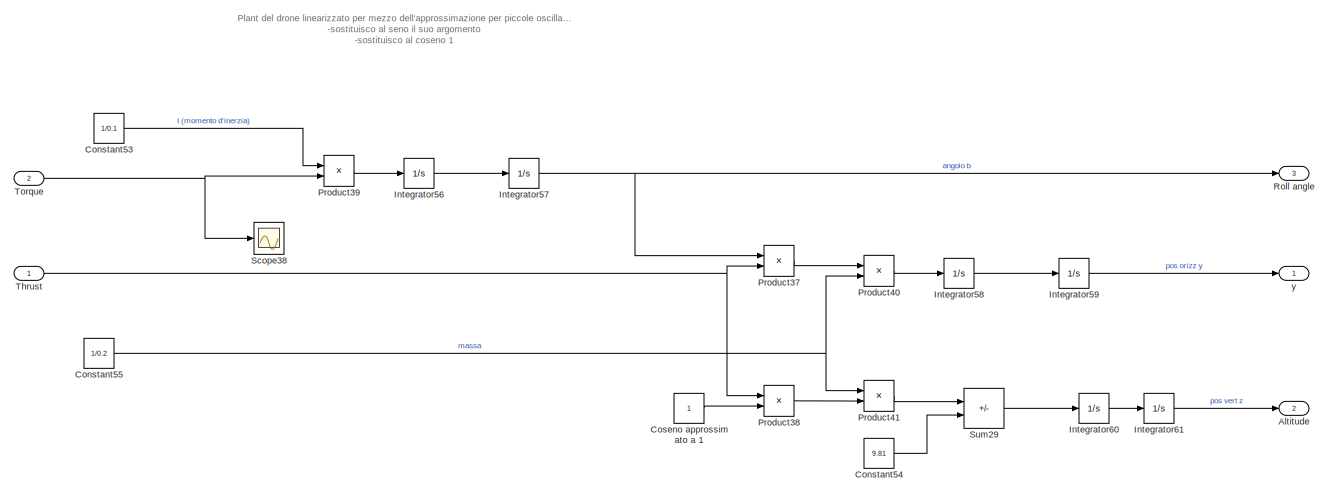
[diagram: root canvas - part 1/2, full width, top band]
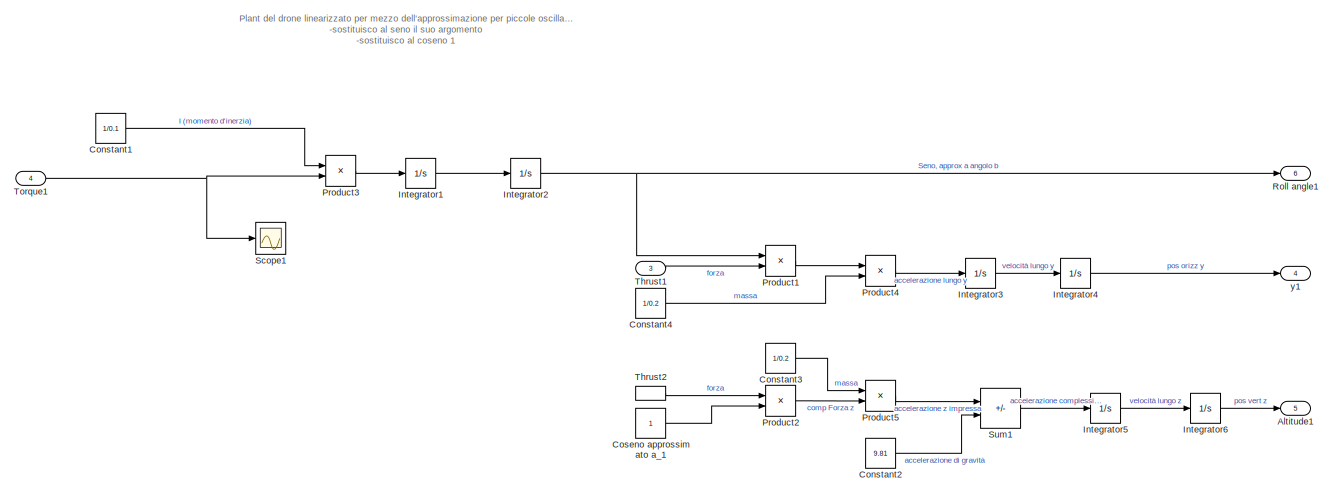
[diagram: root canvas - part 2/2, full width, bottom band]
MODEL slx_66c47ae66fb0
KIND model
CONFIG AbsTol = auto
CONFIG EnableMultiTasking = off
CONFIG FixedStep = auto
CONFIG MaxStep = auto
CONFIG MinStep = auto
CONFIG RelTol = 1e-3
CONFIG SampleTimeConstraint = Unconstrained
CONFIG Solver = VariableStepAuto
CONFIG SolverName = VariableStepAuto
CONFIG StartTime = 0.0
CONFIG StopTime = 10.0
BLOCK [Outport] Altitude
  Description = z position
  Port = 2
  Tag = z position
BLOCK [Outport] Altitude1
  Description = z position
  Port = 5
  Tag = z position
BLOCK [Constant] Constant1
  Value = 1/0.1
BLOCK [Constant] Constant2
  Value = 9.81
BLOCK [Constant] Constant3
  Value = 1/0.2
BLOCK [Constant] Constant4
  Value = 1/0.2
BLOCK [Constant] Constant53
  Value = 1/0.1
BLOCK [Constant] Constant54
  Value = 9.81
BLOCK [Constant] Constant55
  Value = 1/0.2
BLOCK [Constant] Coseno approssimato a 1
BLOCK [Constant] Coseno approssimato a_1
  NameLocation = right
BLOCK [Integrator] Integrator1
  Ports = [1, 1]
BLOCK [Integrator] Integrator2
  Ports = [1, 1]
BLOCK [Integrator] Integrator3
  Ports = [1, 1]
BLOCK [Integrator] Integrator4
  Ports = [1, 1]
BLOCK [Integrator] Integrator5
  Ports = [1, 1]
BLOCK [Integrator] Integrator56
  Ports = [1, 1]
BLOCK [Integrator] Integrator57
  Ports = [1, 1]
BLOCK [Integrator] Integrator58
  Ports = [1, 1]
BLOCK [Integrator] Integrator59
  Ports = [1, 1]
BLOCK [Integrator] Integrator6
  Ports = [1, 1]
BLOCK [Integrator] Integrator60
  Ports = [1, 1]
BLOCK [Integrator] Integrator61
  Ports = [1, 1]
BLOCK [Product] Product1
  Ports = [2, 1]
BLOCK [Product] Product2
  Ports = [2, 1]
BLOCK [Product] Product3
  Ports = [2, 1]
BLOCK [Product] Product37
  Ports = [2, 1]
BLOCK [Product] Product38
  Ports = [2, 1]
BLOCK [Product] Product39
  Ports = [2, 1]
BLOCK [Product] Product4
  Ports = [2, 1]
BLOCK [Product] Product40
  Ports = [2, 1]
BLOCK [Product] Product41
  Ports = [2, 1]
BLOCK [Product] Product5
  Ports = [2, 1]
BLOCK [Outport] Roll angle
  Description = roll angle
  Port = 3
  Tag = roll angle
BLOCK [Outport] Roll angle1
  Description = roll angle
  Port = 6
  Tag = roll angle
BLOCK [Scope] Scope1
  Floating = off
  NumInputPorts = 1
  Ports = [1]
  ScopeSpecificationString = Simulink.scopes.TimeScopeBlockCfg('CurrentConfiguration', extmgr.ConfigurationSet(extmgr.Configuration('Core','General UI',true),extmgr.Configuration('Core','Source UI',true),extmgr.Configuration('Sources','WiredSimulink',true),extmgr.Configuration('Visuals','Time Domain',true,'SerializedDisplays',{struct('MinYLimReal','-0.57025','MaxYLimReal','2.70528','YLabelReal','','MinYLimMag','0.00000','MaxY...<+1374ch>
BLOCK [Scope] Scope38
  Floating = off
  NumInputPorts = 1
  Ports = [1]
  ScopeSpecificationString = Simulink.scopes.TimeScopeBlockCfg('CurrentConfiguration', extmgr.ConfigurationSet(extmgr.Configuration('Core','General UI',true),extmgr.Configuration('Core','Source UI',true),extmgr.Configuration('Sources','WiredSimulink',true,'DataLoggingVariableName','ScopeData1'),extmgr.Configuration('Visuals','Time Domain',true,'SerializedDisplays',{struct('MinYLimReal','-0.57025','MaxYLimReal','2.70528','YLab...<+1413ch>
BLOCK [Sum] Sum1
  IconShape = rectangular
  Inputs = +-
  Ports = [2, 1]
BLOCK [Sum] Sum29
  IconShape = rectangular
  Inputs = +-
  Ports = [2, 1]
BLOCK [Inport] Thrust
  Description = torque
  Tag = torque
BLOCK [Inport] Thrust1
  Description = torque
  Port = 3
  Tag = torque
BLOCK [InportShadow] Thrust2
  Description = torque
  Port = 3
  Tag = torque
BLOCK [Inport] Torque
  Description = thrust
  Port = 2
  Tag = thrust
BLOCK [Inport] Torque1
  Description = thrust
  Port = 4
  Tag = thrust
BLOCK [Outport] y
  Description = y position
  Tag = y position
BLOCK [Outport] y1
  Description = y position
  Port = 4
  Tag = y position
ANNOTATION (root): Plant del drone linearizzato per mezzo dell'approssimazione per piccole oscillazioni: -sostituisco al seno il suo argomento -sostituisco al coseno 1
LINE Constant1:1 -> Product3:1
LINE Constant2:1 -> Sum1:2
LINE Constant3:1 -> Product5:1
LINE Constant4:1 -> Product4:2
LINE Constant53:1 -> Product39:1
LINE Constant54:1 -> Sum29:2
NET Constant55:1 -> Product40:2, Product41:1
LINE Coseno approssimato a 1:1 -> Product38:2
LINE Coseno approssimato a_1:1 -> Product2:2
LINE Integrator1:1 -> Integrator2:1
NET Integrator2:1 -> Product1:1, Roll angle1:1
LINE Integrator3:1 -> Integrator4:1
LINE Integrator4:1 -> y1:1
LINE Integrator56:1 -> Integrator57:1
NET Integrator57:1 -> Product37:1, Roll angle:1
LINE Integrator58:1 -> Integrator59:1
LINE Integrator59:1 -> y:1
LINE Integrator5:1 -> Integrator6:1
LINE Integrator60:1 -> Integrator61:1
LINE Integrator61:1 -> Altitude:1
LINE Integrator6:1 -> Altitude1:1
LINE Product1:1 -> Product4:1
LINE Product2:1 -> Product5:2
LINE Product37:1 -> Product40:1
LINE Product38:1 -> Product41:2
LINE Product39:1 -> Integrator56:1
LINE Product3:1 -> Integrator1:1
LINE Product40:1 -> Integrator58:1
LINE Product41:1 -> Sum29:1
LINE Product4:1 -> Integrator3:1
LINE Product5:1 -> Sum1:1
LINE Sum1:1 -> Integrator5:1
LINE Sum29:1 -> Integrator60:1
LINE Thrust1:1 -> Product1:2
LINE Thrust2:1 -> Product2:1
NET Thrust:1 -> Product37:2, Product38:1
NET Torque1:1 -> Product3:2, Scope1:1
NET Torque:1 -> Product39:2, Scope38:1
note: NET lines group one-source signal fan-out (src -> all destinations, sorted); 1:1 wires keep LINE
